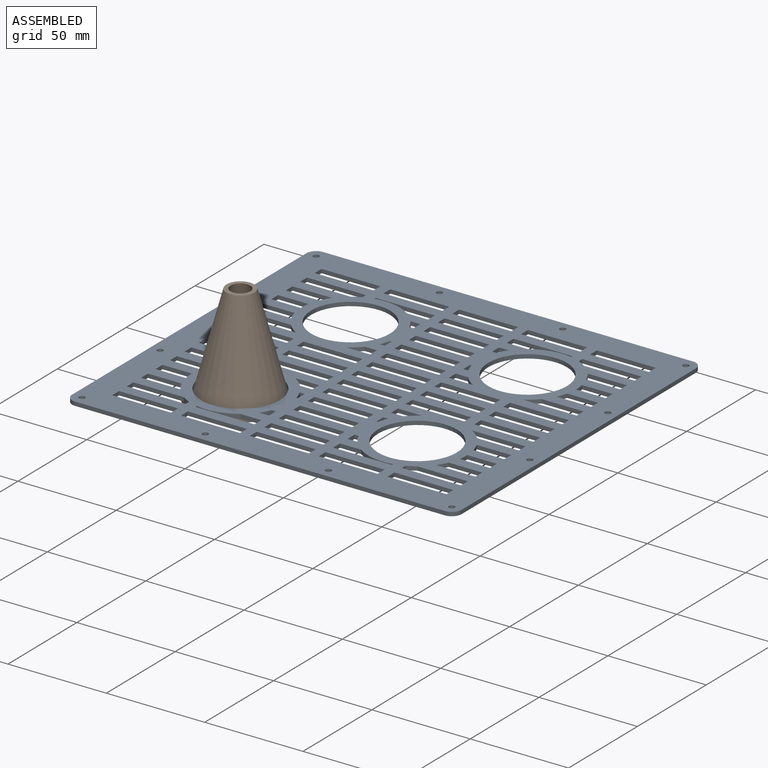
[diagram: assembled view]
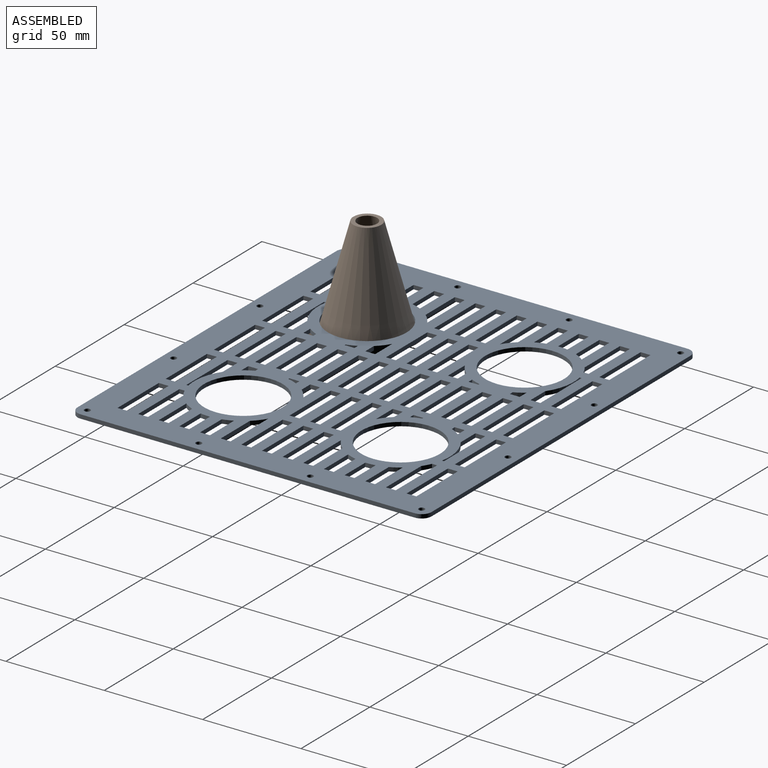
[diagram: assembled view, second angle]
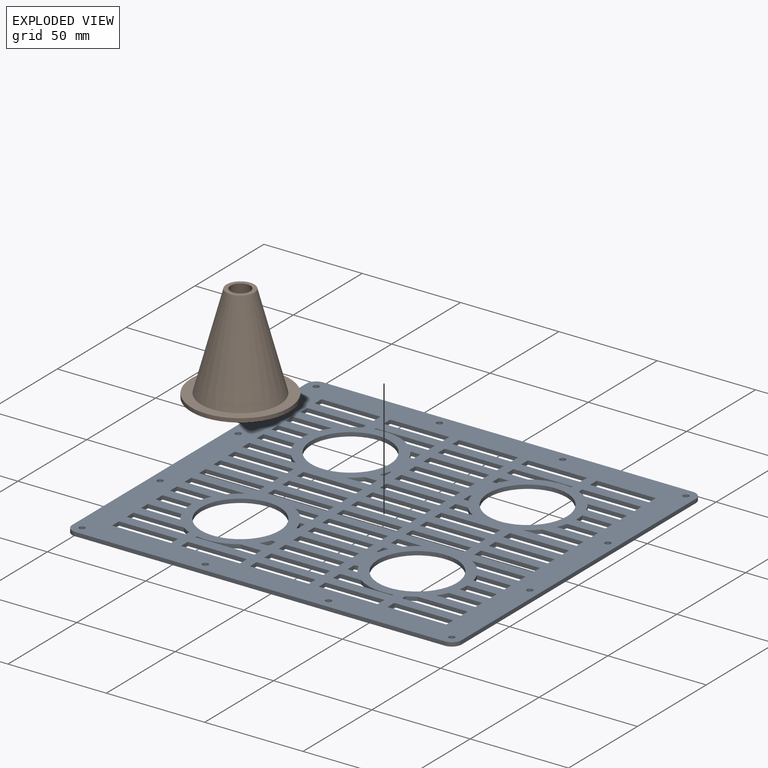
[diagram: exploded view]
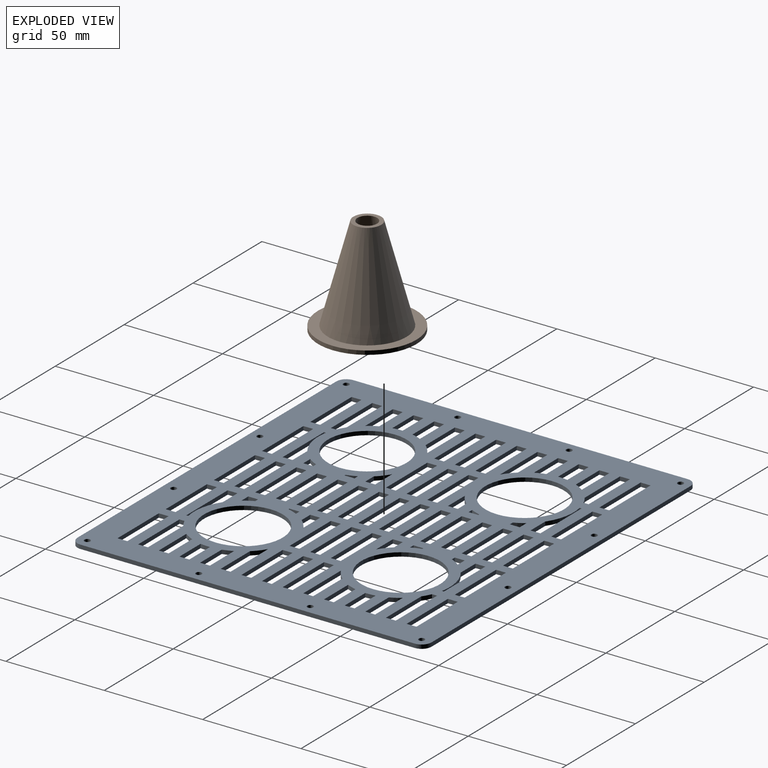
[diagram: exploded view, second angle]
ASSEMBLY  parts=2 mates=2
PART A: 318 faces, bbox 198x180x2 mm
  f0: plane 5x2mm, normal (-1,0,0), area 10mm2, adj f1,f89,f90,f91
  f1: plane 30x2mm, normal (0,1,0), area 60mm2, adj f0,f90,f91,f92
  f2: plane 30x2mm, normal (0,-1,0), area 60mm2, adj f3,f90,f91,f93
  f3: plane 5x2mm, normal (-1,0,0), area 10mm2, adj f2,f4,f90,f91
  f4: plane 30x2mm, normal (0,1,0), area 60mm2, adj f3,f90,f91,f93
  f5: plane 30x2mm, normal (0,-1,0), area 60mm2, adj f6,f90,f91,f94
  f6: plane 5x2mm, normal (-1,0,0), area 10mm2, adj f5,f7,f90,f91
  f7: plane 30x2mm, normal (0,1,0), area 60mm2, adj f6,f90,f91,f94
  f8: plane 30x2mm, normal (0,-1,0), area 60mm2, adj f9,f90,f91,f95
  f9: plane 5x2mm, normal (-1,0,0), area 10mm2, adj f8,f10,f90,f91
  f10: plane 30x2mm, normal (0,1,0), area 60mm2, adj f9,f90,f91,f95
  f11: plane 30x2mm, normal (0,-1,0), area 60mm2, adj f12,f90,f91,f96
  f12: plane 5x2mm, normal (-1,0,0), area 10mm2, adj f11,f90,f91,f177
  f13: plane 5x2mm, normal (1,0,0), area 10mm2, adj f14,f90,f91,f178
  f14: plane 30x2mm, normal (0,-1,0), area 60mm2, adj f13,f15,f90,f91
  f15: plane 5x2mm, normal (-1,0,0), area 10mm2, adj f14,f90,f91,f178
  f16: plane 5x2mm, normal (1,0,0), area 10mm2, adj f17,f90,f91,f179
  f17: plane 30x2mm, normal (0,-1,0), area 60mm2, adj f16,f18,f90,f91
  f18: plane 5x2mm, normal (-1,0,0), area 10mm2, adj f17,f90,f91,f179
  f19: plane 170x2mm, normal (1,0,0), area 340mm2, adj f20,f90,f91,f180
  f20: cylinder r=5mm len=5mm, axis (0,0,-1), area 15.7mm2, adj f19,f21,f90,f91
  f21: plane 188x2mm, normal (0,1,0), area 376mm2, adj f20,f90,f91,f104
  f22: plane 30x2mm, normal (0,-1,0), area 60mm2, adj f23,f90,f91,f105
  f23: plane 5x2mm, normal (-1,0,0), area 10mm2, adj f22,f24,f90,f91
  f24: plane 30x2mm, normal (0,1,0), area 60mm2, adj f23,f90,f91,f105
  f25: plane 30x2mm, normal (0,-1,0), area 60mm2, adj f26,f90,f91,f106
  f26: plane 5x2mm, normal (-1,0,0), area 10mm2, adj f25,f27,f90,f91
  f27: plane 30x2mm, normal (0,1,0), area 60mm2, adj f26,f90,f91,f106
  f28: plane 30x2mm, normal (0,-1,0), area 60mm2, adj f29,f90,f91,f107
  f29: plane 5x2mm, normal (-1,0,0), area 10mm2, adj f28,f30,f90,f91
  f30: plane 30x2mm, normal (0,1,0), area 60mm2, adj f29,f90,f91,f107
  f31: plane 20x2mm, normal (0,-1,0), area 40mm2, adj f32,f72,f90,f91
  f32: plane 5x2mm, normal (-1,0,0), area 10mm2, adj f31,f33,f90,f91
  f33: plane 17.09x2mm, normal (0,1,0), area 34.2mm2, adj f32,f72,f90,f91
  f34: plane 15.41x2mm, normal (0,-1,0), area 30.8mm2, adj f35,f73,f90,f91
  f35: plane 5x2mm, normal (-1,0,0), area 10mm2, adj f34,f36,f90,f91
  f36: plane 15.01x2mm, normal (0,1,0), area 30mm2, adj f35,f73,f90,f91
  f37: plane 15.73x2mm, normal (0,-1,0), area 31.5mm2, adj f38,f74,f90,f91
  f38: plane 5x2mm, normal (-1,0,0), area 10mm2, adj f37,f39,f90,f91
  f39: plane 17.55x2mm, normal (0,1,0), area 35.1mm2, adj f38,f74,f90,f91
  f40: plane 21.22x2mm, normal (0,-1,0), area 42.4mm2, adj f41,f75,f90,f91
  f41: plane 5x2mm, normal (-1,0,0), area 10mm2, adj f40,f42,f90,f91
  f42: plane 27.24x2mm, normal (0,1,0), area 54.5mm2, adj f41,f75,f90,f91
  f43: plane 30x2mm, normal (0,-1,0), area 60mm2, adj f44,f76,f90,f91
  f44: plane 5x2mm, normal (-1,0,0), area 10mm2, adj f43,f45,f90,f91
  f45: plane 25.69x2mm, normal (0,1,0), area 51.4mm2, adj f44,f46,f90,f91
  f46: cylinder r=25mm len=4.31mm, axis (0,0,-1), area 9.9mm2, adj f45,f76,f90,f91
  f47: plane 10.69x2mm, normal (0,1,0), area 21.4mm2, adj f48,f81,f90,f91
  f48: plane 5x2mm, normal (1,0,0), area 10mm2, adj f47,f49,f90,f91
  f49: plane 30x2mm, normal (0,-1,0), area 60mm2, adj f48,f50,f90,f91
  f50: plane 2x1.01mm, normal (-1,0,0), area 2mm2, adj f49,f81,f90,f91
  f51: plane 2.55x2mm, normal (0,1,0), area 5.1mm2, adj f52,f82,f90,f91
  f52: plane 5x2mm, normal (1,0,0), area 10mm2, adj f51,f53,f90,f91
  f53: plane 2x0.73mm, normal (0,-1,0), area 1.5mm2, adj f52,f82,f90,f91
  f54: plane 12.24x2mm, normal (0,1,0), area 24.5mm2, adj f55,f83,f90,f91
  f55: plane 5x2mm, normal (1,0,0), area 10mm2, adj f54,f56,f90,f91
  f56: plane 6.22x2mm, normal (0,-1,0), area 12.4mm2, adj f55,f83,f90,f91
  f57: plane 5x2mm, normal (0,-1,0), area 10mm2, adj f58,f84,f90,f91
  f58: cylinder r=25mm len=5mm, axis (0,0,-1), area 11.6mm2, adj f57,f59,f90,f91
  f59: plane 2.09x2mm, normal (0,1,0), area 4.2mm2, adj f58,f84,f90,f91
  f60: plane 30x2mm, normal (0,-1,0), area 60mm2, adj f61,f85,f90,f91
  f61: plane 5x2mm, normal (-1,0,0), area 10mm2, adj f60,f62,f90,f91
  f62: plane 30x2mm, normal (0,1,0), area 60mm2, adj f61,f85,f90,f91
  f63: plane 30x2mm, normal (0,-1,0), area 60mm2, adj f64,f86,f90,f91
  f64: plane 5x2mm, normal (-1,0,0), area 10mm2, adj f63,f65,f90,f91
  f65: plane 30x2mm, normal (0,1,0), area 60mm2, adj f64,f86,f90,f91
  f66: plane 30x2mm, normal (0,-1,0), area 60mm2, adj f67,f87,f90,f91
  f67: plane 5x2mm, normal (-1,0,0), area 10mm2, adj f66,f68,f90,f91
  f68: plane 30x2mm, normal (0,1,0), area 60mm2, adj f67,f87,f90,f91
  f69: plane 30x2mm, normal (0,-1,0), area 60mm2, adj f70,f88,f90,f91
  f70: plane 5x2mm, normal (-1,0,0), area 10mm2, adj f69,f71,f90,f91
  f71: plane 30x2mm, normal (0,1,0), area 60mm2, adj f70,f88,f90,f91
  f72: cylinder r=25mm len=5mm, axis (0,0,-1), area 11.6mm2, adj f31,f33,f90,f91
  f73: cylinder r=25mm len=5mm, axis (0,0,-1), area 10mm2, adj f34,f36,f90,f91
  f74: cylinder r=25mm len=5mm, axis (0,0,-1), area 10.7mm2, adj f37,f39,f90,f91
  f75: cylinder r=25mm len=6.02mm, axis (0,0,-1), area 15.7mm2, adj f40,f42,f90,f91
  f76: plane 2.59x2mm, normal (1,0,0), area 5.2mm2, adj f43,f46,f90,f91
  f77: cylinder r=20mm len=40mm, axis (0,0,-1), area 251.3mm2, adj f90,f91
  f78: cylinder r=1.5mm len=3mm, axis (0,0,-1), area 18.8mm2, adj f90,f91
  f79: cylinder r=1.5mm len=3mm, axis (0,0,-1), area 18.8mm2, adj f90,f91
  f80: cylinder r=1.5mm len=3mm, axis (0,0,-1), area 18.8mm2, adj f90,f91
  f81: cylinder r=25mm len=19.31mm, axis (0,0,-1), area 40.5mm2, adj f47,f50,f90,f91
  f82: cylinder r=25mm len=5mm, axis (0,0,-1), area 10.7mm2, adj f51,f53,f90,f91
  f83: cylinder r=25mm len=6.02mm, axis (0,0,-1), area 15.7mm2, adj f54,f56,f90,f91
  f84: plane 5x2mm, normal (1,0,0), area 10mm2, adj f57,f59,f90,f91
  f85: plane 5x2mm, normal (1,0,0), area 10mm2, adj f60,f62,f90,f91
  f86: plane 5x2mm, normal (1,0,0), area 10mm2, adj f63,f65,f90,f91
  f87: plane 5x2mm, normal (1,0,0), area 10mm2, adj f66,f68,f90,f91
  f88: plane 5x2mm, normal (1,0,0), area 10mm2, adj f69,f71,f90,f91
  f89: plane 30x2mm, normal (0,-1,0), area 60mm2, adj f0,f90,f91,f92
  f90: plane 198x180mm, normal (0,0,1), area 22584.4mm2, adj f0,f1,f2,f3,f4,f5,f6,f7
  f91: plane 198x180mm, normal (0,0,-1), area 22584.4mm2, adj f0,f1,f2,f3,f4,f5,f6,f7
  f92: plane 5x2mm, normal (1,0,0), area 10mm2, adj f1,f89,f90,f91
  f93: plane 5x2mm, normal (1,0,0), area 10mm2, adj f2,f4,f90,f91
  f94: plane 5x2mm, normal (1,0,0), area 10mm2, adj f5,f7,f90,f91
  f95: plane 5x2mm, normal (1,0,0), area 10mm2, adj f8,f10,f90,f91
  f96: plane 5x2mm, normal (1,0,0), area 10mm2, adj f11,f90,f91,f177
  f97: plane 5x2mm, normal (-1,0,0), area 10mm2, adj f90,f91,f98,f254
  f98: plane 30x2mm, normal (0,-1,0), area 60mm2, adj f90,f91,f97,f99
  f99: plane 5x2mm, normal (1,0,0), area 10mm2, adj f90,f91,f98,f254
  f100: plane 5x2mm, normal (-1,0,0), area 10mm2, adj f90,f91,f101,f255
  f101: plane 30x2mm, normal (0,-1,0), area 60mm2, adj f90,f91,f100,f102
  f102: plane 5x2mm, normal (1,0,0), area 10mm2, adj f90,f91,f101,f255
  f103: plane 170x2mm, normal (-1,0,0), area 340mm2, adj f90,f91,f104,f256
  f104: cylinder r=5mm len=5mm, axis (0,0,-1), area 15.7mm2, adj f21,f90,f91,f103
  f105: plane 5x2mm, normal (1,0,0), area 10mm2, adj f22,f24,f90,f91
  f106: plane 5x2mm, normal (1,0,0), area 10mm2, adj f25,f27,f90,f91
  f107: plane 5x2mm, normal (1,0,0), area 10mm2, adj f28,f30,f90,f91
  f108: plane 20x2mm, normal (0,-1,0), area 40mm2, adj f90,f91,f109,f149
  f109: plane 5x2mm, normal (1,0,0), area 10mm2, adj f90,f91,f108,f110
  f110: plane 17.09x2mm, normal (0,1,0), area 34.2mm2, adj f90,f91,f109,f149
  f111: plane 15.41x2mm, normal (0,-1,0), area 30.8mm2, adj f90,f91,f112,f150
  f112: plane 5x2mm, normal (1,0,0), area 10mm2, adj f90,f91,f111,f113
  f113: plane 15.01x2mm, normal (0,1,0), area 30mm2, adj f90,f91,f112,f150
  f114: plane 15.73x2mm, normal (0,-1,0), area 31.5mm2, adj f90,f91,f115,f151
  f115: plane 5x2mm, normal (1,0,0), area 10mm2, adj f90,f91,f114,f116
  f116: plane 17.55x2mm, normal (0,1,0), area 35.1mm2, adj f90,f91,f115,f151
  f117: plane 21.22x2mm, normal (0,-1,0), area 42.4mm2, adj f90,f91,f118,f152
  f118: plane 5x2mm, normal (1,0,0), area 10mm2, adj f90,f91,f117,f119
  f119: plane 27.24x2mm, normal (0,1,0), area 54.5mm2, adj f90,f91,f118,f152
  f120: plane 30x2mm, normal (0,-1,0), area 60mm2, adj f90,f91,f121,f153
  f121: plane 5x2mm, normal (1,0,0), area 10mm2, adj f90,f91,f120,f122
  f122: plane 25.69x2mm, normal (0,1,0), area 51.4mm2, adj f90,f91,f121,f123
  f123: cylinder r=25mm len=4.31mm, axis (0,0,-1), area 9.9mm2, adj f90,f91,f122,f153
  f124: plane 10.69x2mm, normal (0,1,0), area 21.4mm2, adj f90,f91,f125,f158
  f125: plane 5x2mm, normal (-1,0,0), area 10mm2, adj f90,f91,f124,f126
  f126: plane 30x2mm, normal (0,-1,0), area 60mm2, adj f90,f91,f125,f127
  f127: plane 2x1.01mm, normal (1,0,0), area 2mm2, adj f90,f91,f126,f158
  f128: plane 2.55x2mm, normal (0,1,0), area 5.1mm2, adj f90,f91,f129,f159
  f129: plane 5x2mm, normal (-1,0,0), area 10mm2, adj f90,f91,f128,f130
  f130: plane 2x0.73mm, normal (0,-1,0), area 1.5mm2, adj f90,f91,f129,f159
  f131: plane 12.24x2mm, normal (0,1,0), area 24.5mm2, adj f90,f91,f132,f160
  f132: plane 5x2mm, normal (-1,0,0), area 10mm2, adj f90,f91,f131,f133
  f133: plane 6.22x2mm, normal (0,-1,0), area 12.4mm2, adj f90,f91,f132,f160
  f134: plane 5x2mm, normal (0,-1,0), area 10mm2, adj f90,f91,f135,f161
  f135: cylinder r=25mm len=5mm, axis (0,0,-1), area 11.6mm2, adj f90,f91,f134,f136
  f136: plane 2.09x2mm, normal (0,1,0), area 4.2mm2, adj f90,f91,f135,f161
  f137: plane 30x2mm, normal (0,-1,0), area 60mm2, adj f90,f91,f138,f162
  f138: plane 5x2mm, normal (1,0,0), area 10mm2, adj f90,f91,f137,f139
  f139: plane 30x2mm, normal (0,1,0), area 60mm2, adj f90,f91,f138,f162
  f140: plane 30x2mm, normal (0,-1,0), area 60mm2, adj f90,f91,f141,f163
  f141: plane 5x2mm, normal (1,0,0), area 10mm2, adj f90,f91,f140,f142
  f142: plane 30x2mm, normal (0,1,0), area 60mm2, adj f90,f91,f141,f163
  f143: plane 30x2mm, normal (0,-1,0), area 60mm2, adj f90,f91,f144,f164
  f144: plane 5x2mm, normal (1,0,0), area 10mm2, adj f90,f91,f143,f145
  f145: plane 30x2mm, normal (0,1,0), area 60mm2, adj f90,f91,f144,f164
  f146: plane 30x2mm, normal (0,-1,0), area 60mm2, adj f90,f91,f147,f165
  f147: plane 5x2mm, normal (1,0,0), area 10mm2, adj f90,f91,f146,f148
  f148: plane 30x2mm, normal (0,1,0), area 60mm2, adj f90,f91,f147,f165
  f149: cylinder r=25mm len=5mm, axis (0,0,-1), area 11.6mm2, adj f90,f91,f108,f110
  f150: cylinder r=25mm len=5mm, axis (0,0,-1), area 10mm2, adj f90,f91,f111,f113
  f151: cylinder r=25mm len=5mm, axis (0,0,-1), area 10.7mm2, adj f90,f91,f114,f116
  f152: cylinder r=25mm len=6.02mm, axis (0,0,-1), area 15.7mm2, adj f90,f91,f117,f119
  f153: plane 2.59x2mm, normal (-1,0,0), area 5.2mm2, adj f90,f91,f120,f123
  f154: cylinder r=20mm len=40mm, axis (0,0,-1), area 251.3mm2, adj f90,f91
  f155: cylinder r=1.5mm len=3mm, axis (0,0,-1), area 18.8mm2, adj f90,f91
  f156: cylinder r=1.5mm len=3mm, axis (0,0,-1), area 18.8mm2, adj f90,f91
  f157: cylinder r=1.5mm len=3mm, axis (0,0,-1), area 18.8mm2, adj f90,f91
  f158: cylinder r=25mm len=19.31mm, axis (0,0,-1), area 40.5mm2, adj f90,f91,f124,f127
  f159: cylinder r=25mm len=5mm, axis (0,0,-1), area 10.7mm2, adj f90,f91,f128,f130
  f160: cylinder r=25mm len=6.02mm, axis (0,0,-1), area 15.7mm2, adj f90,f91,f131,f133
  f161: plane 5x2mm, normal (-1,0,0), area 10mm2, adj f90,f91,f134,f136
  f162: plane 5x2mm, normal (-1,0,0), area 10mm2, adj f90,f91,f137,f139
  f163: plane 5x2mm, normal (-1,0,0), area 10mm2, adj f90,f91,f140,f142
  f164: plane 5x2mm, normal (-1,0,0), area 10mm2, adj f90,f91,f143,f145
  f165: plane 5x2mm, normal (-1,0,0), area 10mm2, adj f90,f91,f146,f148
  f166: plane 5x2mm, normal (-1,0,0), area 10mm2, adj f90,f91,f167,f249
  f167: plane 30x2mm, normal (0,-1,0), area 60mm2, adj f90,f91,f166,f250
  f168: plane 30x2mm, normal (0,1,0), area 60mm2, adj f90,f91,f169,f251
  f169: plane 5x2mm, normal (-1,0,0), area 10mm2, adj f90,f91,f168,f170
  f170: plane 30x2mm, normal (0,-1,0), area 60mm2, adj f90,f91,f169,f251
  f171: plane 30x2mm, normal (0,1,0), area 60mm2, adj f90,f91,f172,f252
  f172: plane 5x2mm, normal (-1,0,0), area 10mm2, adj f90,f91,f171,f173
  f173: plane 30x2mm, normal (0,-1,0), area 60mm2, adj f90,f91,f172,f252
  f174: plane 30x2mm, normal (0,1,0), area 60mm2, adj f90,f91,f175,f253
  f175: plane 5x2mm, normal (-1,0,0), area 10mm2, adj f90,f91,f174,f176
  f176: plane 30x2mm, normal (0,-1,0), area 60mm2, adj f90,f91,f175,f253
  f177: plane 30x2mm, normal (0,1,0), area 60mm2, adj f12,f90,f91,f96
  f178: plane 30x2mm, normal (0,1,0), area 60mm2, adj f13,f15,f90,f91
  f179: plane 30x2mm, normal (0,1,0), area 60mm2, adj f16,f18,f90,f91
  f180: cylinder r=5mm len=5mm, axis (0,0,-1), area 15.7mm2, adj f19,f90,f91,f181
  f181: plane 188x2mm, normal (0,-1,0), area 376mm2, adj f90,f91,f180,f256
  f182: plane 30x2mm, normal (0,1,0), area 60mm2, adj f90,f91,f183,f257
  f183: plane 5x2mm, normal (-1,0,0), area 10mm2, adj f90,f91,f182,f184
  f184: plane 30x2mm, normal (0,-1,0), area 60mm2, adj f90,f91,f183,f257
  f185: plane 30x2mm, normal (0,1,0), area 60mm2, adj f90,f91,f186,f258
  f186: plane 5x2mm, normal (-1,0,0), area 10mm2, adj f90,f91,f185,f187
  f187: plane 30x2mm, normal (0,-1,0), area 60mm2, adj f90,f91,f186,f258
  f188: plane 30x2mm, normal (0,1,0), area 60mm2, adj f90,f91,f189,f259
  f189: plane 5x2mm, normal (-1,0,0), area 10mm2, adj f90,f91,f188,f190
  f190: plane 30x2mm, normal (0,-1,0), area 60mm2, adj f90,f91,f189,f259
  f191: plane 20x2mm, normal (0,1,0), area 40mm2, adj f90,f91,f192,f232
  f192: plane 5x2mm, normal (-1,0,0), area 10mm2, adj f90,f91,f191,f193
  f193: plane 17.09x2mm, normal (0,-1,0), area 34.2mm2, adj f90,f91,f192,f232
  f194: plane 15.41x2mm, normal (0,1,0), area 30.8mm2, adj f90,f91,f195,f233
  f195: plane 5x2mm, normal (-1,0,0), area 10mm2, adj f90,f91,f194,f196
  f196: plane 15.01x2mm, normal (0,-1,0), area 30mm2, adj f90,f91,f195,f233
  f197: plane 15.73x2mm, normal (0,1,0), area 31.5mm2, adj f90,f91,f198,f234
  f198: plane 5x2mm, normal (-1,0,0), area 10mm2, adj f90,f91,f197,f199
  f199: plane 17.55x2mm, normal (0,-1,0), area 35.1mm2, adj f90,f91,f198,f234
  f200: plane 21.22x2mm, normal (0,1,0), area 42.4mm2, adj f90,f91,f201,f235
  f201: plane 5x2mm, normal (-1,0,0), area 10mm2, adj f90,f91,f200,f202
  f202: plane 27.24x2mm, normal (0,-1,0), area 54.5mm2, adj f90,f91,f201,f235
  f203: plane 30x2mm, normal (0,1,0), area 60mm2, adj f90,f91,f204,f236
  f204: plane 5x2mm, normal (-1,0,0), area 10mm2, adj f90,f91,f203,f205
  f205: plane 25.69x2mm, normal (0,-1,0), area 51.4mm2, adj f90,f91,f204,f206
  f206: cylinder r=25mm len=4.31mm, axis (0,0,-1), area 9.9mm2, adj f90,f91,f205,f236
  f207: plane 10.69x2mm, normal (0,-1,0), area 21.4mm2, adj f90,f91,f208,f241
  f208: plane 5x2mm, normal (1,0,0), area 10mm2, adj f90,f91,f207,f209
  f209: plane 30x2mm, normal (0,1,0), area 60mm2, adj f90,f91,f208,f210
  f210: plane 2x1.01mm, normal (-1,0,0), area 2mm2, adj f90,f91,f209,f241
  f211: plane 2.55x2mm, normal (0,-1,0), area 5.1mm2, adj f90,f91,f212,f242
  f212: plane 5x2mm, normal (1,0,0), area 10mm2, adj f90,f91,f211,f213
  f213: plane 2x0.73mm, normal (0,1,0), area 1.5mm2, adj f90,f91,f212,f242
  f214: plane 12.24x2mm, normal (0,-1,0), area 24.5mm2, adj f90,f91,f215,f243
  f215: plane 5x2mm, normal (1,0,0), area 10mm2, adj f90,f91,f214,f216
  f216: plane 6.22x2mm, normal (0,1,0), area 12.4mm2, adj f90,f91,f215,f243
  f217: plane 5x2mm, normal (0,1,0), area 10mm2, adj f90,f91,f218,f244
  f218: cylinder r=25mm len=5mm, axis (0,0,-1), area 11.6mm2, adj f90,f91,f217,f219
  f219: plane 2.09x2mm, normal (0,-1,0), area 4.2mm2, adj f90,f91,f218,f244
  f220: plane 30x2mm, normal (0,1,0), area 60mm2, adj f90,f91,f221,f245
  f221: plane 5x2mm, normal (-1,0,0), area 10mm2, adj f90,f91,f220,f222
  f222: plane 30x2mm, normal (0,-1,0), area 60mm2, adj f90,f91,f221,f245
  f223: plane 30x2mm, normal (0,1,0), area 60mm2, adj f90,f91,f224,f246
  f224: plane 5x2mm, normal (-1,0,0), area 10mm2, adj f90,f91,f223,f225
  f225: plane 30x2mm, normal (0,-1,0), area 60mm2, adj f90,f91,f224,f246
  f226: plane 30x2mm, normal (0,1,0), area 60mm2, adj f90,f91,f227,f247
  f227: plane 5x2mm, normal (-1,0,0), area 10mm2, adj f90,f91,f226,f228
  f228: plane 30x2mm, normal (0,-1,0), area 60mm2, adj f90,f91,f227,f247
  f229: plane 30x2mm, normal (0,1,0), area 60mm2, adj f90,f91,f230,f248
  f230: plane 5x2mm, normal (-1,0,0), area 10mm2, adj f90,f91,f229,f231
  f231: plane 30x2mm, normal (0,-1,0), area 60mm2, adj f90,f91,f230,f248
  f232: cylinder r=25mm len=5mm, axis (0,0,-1), area 11.6mm2, adj f90,f91,f191,f193
  f233: cylinder r=25mm len=5mm, axis (0,0,-1), area 10mm2, adj f90,f91,f194,f196
  f234: cylinder r=25mm len=5mm, axis (0,0,-1), area 10.7mm2, adj f90,f91,f197,f199
  f235: cylinder r=25mm len=6.02mm, axis (0,0,-1), area 15.7mm2, adj f90,f91,f200,f202
  f236: plane 2.59x2mm, normal (1,0,0), area 5.2mm2, adj f90,f91,f203,f206
  f237: cylinder r=20mm len=40mm, axis (0,0,-1), area 251.3mm2, adj f90,f91
  f238: cylinder r=1.5mm len=3mm, axis (0,0,-1), area 18.8mm2, adj f90,f91
  f239: cylinder r=1.5mm len=3mm, axis (0,0,-1), area 18.8mm2, adj f90,f91
  f240: cylinder r=1.5mm len=3mm, axis (0,0,-1), area 18.8mm2, adj f90,f91
  f241: cylinder r=25mm len=19.31mm, axis (0,0,-1), area 40.5mm2, adj f90,f91,f207,f210
  f242: cylinder r=25mm len=5mm, axis (0,0,-1), area 10.7mm2, adj f90,f91,f211,f213
  f243: cylinder r=25mm len=6.02mm, axis (0,0,-1), area 15.7mm2, adj f90,f91,f214,f216
  f244: plane 5x2mm, normal (1,0,0), area 10mm2, adj f90,f91,f217,f219
  f245: plane 5x2mm, normal (1,0,0), area 10mm2, adj f90,f91,f220,f222
  f246: plane 5x2mm, normal (1,0,0), area 10mm2, adj f90,f91,f223,f225
  f247: plane 5x2mm, normal (1,0,0), area 10mm2, adj f90,f91,f226,f228
  f248: plane 5x2mm, normal (1,0,0), area 10mm2, adj f90,f91,f229,f231
  f249: plane 30x2mm, normal (0,1,0), area 60mm2, adj f90,f91,f166,f250
  f250: plane 5x2mm, normal (1,0,0), area 10mm2, adj f90,f91,f167,f249
  f251: plane 5x2mm, normal (1,0,0), area 10mm2, adj f90,f91,f168,f170
  f252: plane 5x2mm, normal (1,0,0), area 10mm2, adj f90,f91,f171,f173
  f253: plane 5x2mm, normal (1,0,0), area 10mm2, adj f90,f91,f174,f176
  f254: plane 30x2mm, normal (0,1,0), area 60mm2, adj f90,f91,f97,f99
  f255: plane 30x2mm, normal (0,1,0), area 60mm2, adj f90,f91,f100,f102
  f256: cylinder r=5mm len=5mm, axis (0,0,-1), area 15.7mm2, adj f90,f91,f103,f181
  f257: plane 5x2mm, normal (1,0,0), area 10mm2, adj f90,f91,f182,f184
  f258: plane 5x2mm, normal (1,0,0), area 10mm2, adj f90,f91,f185,f187
  f259: plane 5x2mm, normal (1,0,0), area 10mm2, adj f90,f91,f188,f190
  f260: plane 20x2mm, normal (0,1,0), area 40mm2, adj f90,f91,f261,f301
  f261: plane 5x2mm, normal (1,0,0), area 10mm2, adj f90,f91,f260,f262
  f262: plane 17.09x2mm, normal (0,-1,0), area 34.2mm2, adj f90,f91,f261,f301
  f263: plane 15.41x2mm, normal (0,1,0), area 30.8mm2, adj f90,f91,f264,f302
  f264: plane 5x2mm, normal (1,0,0), area 10mm2, adj f90,f91,f263,f265
  f265: plane 15.01x2mm, normal (0,-1,0), area 30mm2, adj f90,f91,f264,f302
  f266: plane 15.73x2mm, normal (0,1,0), area 31.5mm2, adj f90,f91,f267,f303
  f267: plane 5x2mm, normal (1,0,0), area 10mm2, adj f90,f91,f266,f268
  f268: plane 17.55x2mm, normal (0,-1,0), area 35.1mm2, adj f90,f91,f267,f303
  f269: plane 21.22x2mm, normal (0,1,0), area 42.4mm2, adj f90,f91,f270,f304
  f270: plane 5x2mm, normal (1,0,0), area 10mm2, adj f90,f91,f269,f271
  f271: plane 27.24x2mm, normal (0,-1,0), area 54.5mm2, adj f90,f91,f270,f304
  f272: plane 30x2mm, normal (0,1,0), area 60mm2, adj f90,f91,f273,f305
  f273: plane 5x2mm, normal (1,0,0), area 10mm2, adj f90,f91,f272,f274
  f274: plane 25.69x2mm, normal (0,-1,0), area 51.4mm2, adj f90,f91,f273,f275
  f275: cylinder r=25mm len=4.31mm, axis (0,0,-1), area 9.9mm2, adj f90,f91,f274,f305
  f276: plane 10.69x2mm, normal (0,-1,0), area 21.4mm2, adj f90,f91,f277,f310
  f277: plane 5x2mm, normal (-1,0,0), area 10mm2, adj f90,f91,f276,f278
  f278: plane 30x2mm, normal (0,1,0), area 60mm2, adj f90,f91,f277,f279
  f279: plane 2x1.01mm, normal (1,0,0), area 2mm2, adj f90,f91,f278,f310
  f280: plane 2.55x2mm, normal (0,-1,0), area 5.1mm2, adj f90,f91,f281,f311
  f281: plane 5x2mm, normal (-1,0,0), area 10mm2, adj f90,f91,f280,f282
  f282: plane 2x0.73mm, normal (0,1,0), area 1.5mm2, adj f90,f91,f281,f311
  f283: plane 12.24x2mm, normal (0,-1,0), area 24.5mm2, adj f90,f91,f284,f312
  f284: plane 5x2mm, normal (-1,0,0), area 10mm2, adj f90,f91,f283,f285
  f285: plane 6.22x2mm, normal (0,1,0), area 12.4mm2, adj f90,f91,f284,f312
  f286: plane 5x2mm, normal (0,1,0), area 10mm2, adj f90,f91,f287,f313
  f287: cylinder r=25mm len=5mm, axis (0,0,-1), area 11.6mm2, adj f90,f91,f286,f288
  f288: plane 2.09x2mm, normal (0,-1,0), area 4.2mm2, adj f90,f91,f287,f313
  f289: plane 30x2mm, normal (0,1,0), area 60mm2, adj f90,f91,f290,f314
  f290: plane 5x2mm, normal (1,0,0), area 10mm2, adj f90,f91,f289,f291
  f291: plane 30x2mm, normal (0,-1,0), area 60mm2, adj f90,f91,f290,f314
  f292: plane 30x2mm, normal (0,1,0), area 60mm2, adj f90,f91,f293,f315
  f293: plane 5x2mm, normal (1,0,0), area 10mm2, adj f90,f91,f292,f294
  f294: plane 30x2mm, normal (0,-1,0), area 60mm2, adj f90,f91,f293,f315
  f295: plane 30x2mm, normal (0,1,0), area 60mm2, adj f90,f91,f296,f316
  f296: plane 5x2mm, normal (1,0,0), area 10mm2, adj f90,f91,f295,f297
  f297: plane 30x2mm, normal (0,-1,0), area 60mm2, adj f90,f91,f296,f316
  f298: plane 30x2mm, normal (0,1,0), area 60mm2, adj f90,f91,f299,f317
  f299: plane 5x2mm, normal (1,0,0), area 10mm2, adj f90,f91,f298,f300
  f300: plane 30x2mm, normal (0,-1,0), area 60mm2, adj f90,f91,f299,f317
  f301: cylinder r=25mm len=5mm, axis (0,0,-1), area 11.6mm2, adj f90,f91,f260,f262
  f302: cylinder r=25mm len=5mm, axis (0,0,-1), area 10mm2, adj f90,f91,f263,f265
  f303: cylinder r=25mm len=5mm, axis (0,0,-1), area 10.7mm2, adj f90,f91,f266,f268
  f304: cylinder r=25mm len=6.02mm, axis (0,0,-1), area 15.7mm2, adj f90,f91,f269,f271
  f305: plane 2.59x2mm, normal (-1,0,0), area 5.2mm2, adj f90,f91,f272,f275
  f306: cylinder r=20mm len=40mm, axis (0,0,-1), area 251.3mm2, adj f90,f91
  f307: cylinder r=1.5mm len=3mm, axis (0,0,-1), area 18.8mm2, adj f90,f91
  f308: cylinder r=1.5mm len=3mm, axis (0,0,-1), area 18.8mm2, adj f90,f91
  f309: cylinder r=1.5mm len=3mm, axis (0,0,-1), area 18.8mm2, adj f90,f91
  f310: cylinder r=25mm len=19.31mm, axis (0,0,-1), area 40.5mm2, adj f90,f91,f276,f279
  f311: cylinder r=25mm len=5mm, axis (0,0,-1), area 10.7mm2, adj f90,f91,f280,f282
  f312: cylinder r=25mm len=6.02mm, axis (0,0,-1), area 15.7mm2, adj f90,f91,f283,f285
  f313: plane 5x2mm, normal (-1,0,0), area 10mm2, adj f90,f91,f286,f288
  f314: plane 5x2mm, normal (-1,0,0), area 10mm2, adj f90,f91,f289,f291
  f315: plane 5x2mm, normal (-1,0,0), area 10mm2, adj f90,f91,f292,f294
  f316: plane 5x2mm, normal (-1,0,0), area 10mm2, adj f90,f91,f295,f297
  f317: plane 5x2mm, normal (-1,0,0), area 10mm2, adj f90,f91,f298,f300
PART B: 6 faces, bbox 50x50x50 mm
  f0: plane 50x50mm, normal (0,0,-1), area 892.1mm2, adj f1,f5
  f1: cylinder r=25mm len=50mm, axis (0,0,-1), area 314.2mm2, adj f0,f2
  f2: plane 50x50mm, normal (0,0,1), area 706.9mm2, adj f1,f3
  f3: cone r=7.07mm half-angle=15.1deg, axis (0,0,-1), area 4227.7mm2, adj f2,f4
  f4: plane 14.14x14.14mm, normal (0,0,1), area 78.5mm2, adj f3,f5
  f5: cone r=18.47mm half-angle=15.1deg, axis (0,0,-1), area 3817.6mm2, adj f0,f4
PLACE A t=(-0.25,2,6.11)mm
PLACE B t=(-45.25,-38,4.11)mm
MATE cylindrical B.f1 <-> A.f275  axis (0,0,-1) through (-45.25,-38,5.11)mm
MATE planar B.f1 <-> A.f91  axis (0,0,1) through (-45.25,-38,6.11)mm
